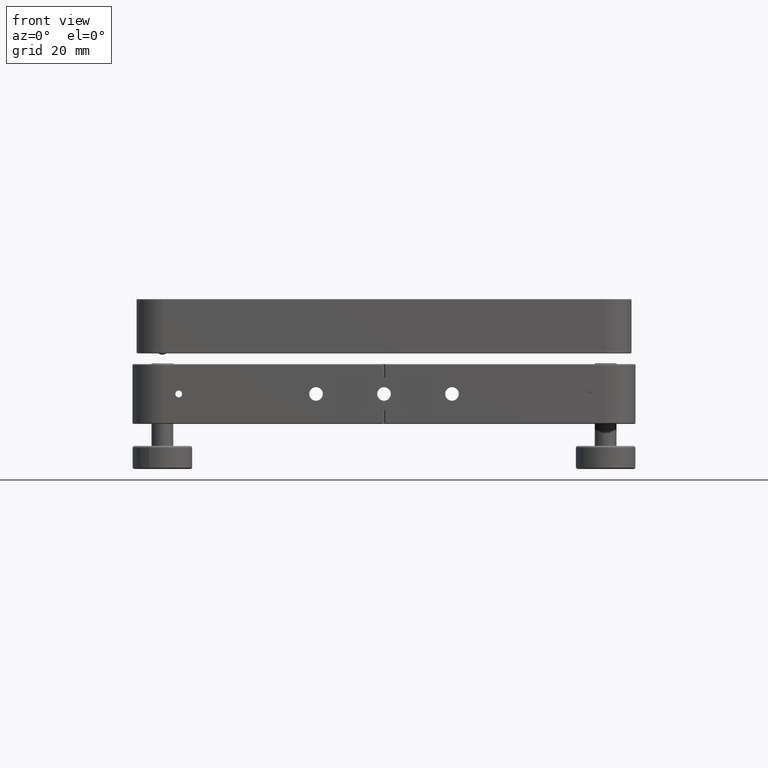
[diagram: clean part render]
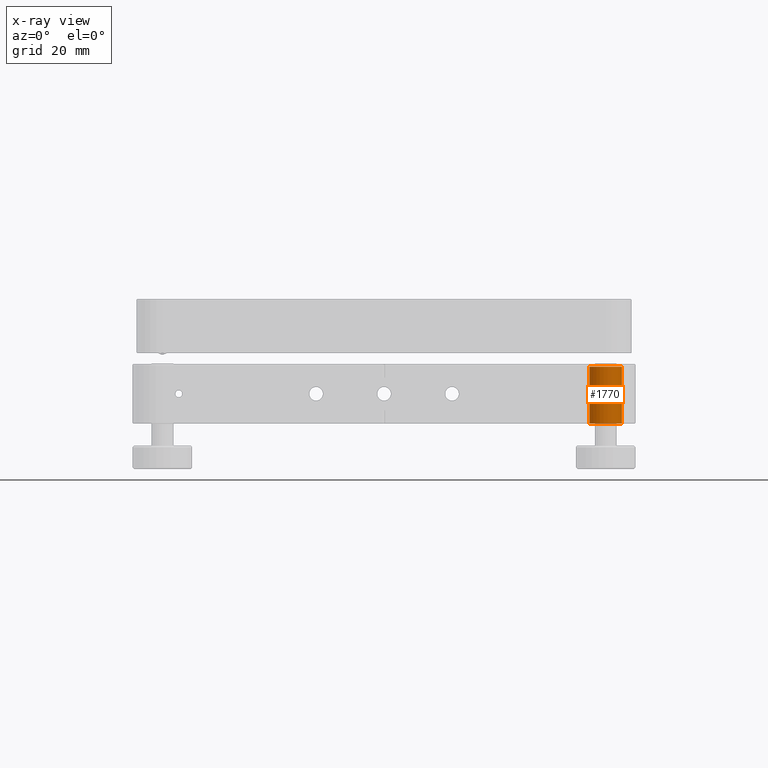
[diagram: x-ray — body ghosted, one internal face saturated and labeled with its STEP entity id]
A machine part, front view, then the same camera in x-ray: the body is ghosted and one INTERNAL B-rep face — a face not visible from any outside direction — is saturated and labeled: STEP entity #1770.
In plain terms, the highlighted cylindrical surface (edge-blend (fillet) strip) has radius 6 mm, axis along (-0, -0, 1).
Its self-contained STEP definition (entity closure, byte-faithful):
#106 = VERTEX_POINT ( 'NONE', #4818 ) ;
#218 = CARTESIAN_POINT ( 'NONE',  ( 76.47780713787686580, -84.78375859891420419, 0.7819749117090980528 ) ) ;
#284 = VERTEX_POINT ( 'NONE', #4466 ) ;
#384 = DIRECTION ( 'NONE',  ( -0.000000000000000000, -0.000000000000000000, 1.000000000000000000 ) ) ;
#454 = CARTESIAN_POINT ( 'NONE',  ( 87.50000000000001421, -81.49999999999998579, -11.00000000000000000 ) ) ;
#827 = CARTESIAN_POINT ( 'NONE',  ( 75.50000000000000000, -81.49999999999998579, 1.249999999999994005 ) ) ;
#1086 = DIRECTION ( 'NONE',  ( -0.000000000000000000, -0.000000000000000000, 1.000000000000000000 ) ) ;
#1185 = FACE_OUTER_BOUND ( 'NONE', #8980, .T. ) ;
#1280 = CYLINDRICAL_SURFACE ( 'NONE', #4076, 6.000000000000005329 ) ;
#1411 = CARTESIAN_POINT ( 'NONE',  ( 76.43834132448142782, -84.72282159784718658, -0.8282246022389997409 ) ) ;
#1770 = ADVANCED_FACE ( 'NONE', ( #1185 ), #1280, .F. ) ;
#1902 = CARTESIAN_POINT ( 'NONE',  ( 76.43484836030268070, -84.71731288065154786, 0.8321056435616549507 ) ) ;
#2000 = EDGE_CURVE ( 'NONE', #11392, #14306, #12048, .T. ) ;
#2088 = LINE ( 'NONE', #8219, #14669 ) ;
#2401 = CARTESIAN_POINT ( 'NONE',  ( 75.50000000000000000, -81.49999999999998579, -11.00000000000000000 ) ) ;
#2511 = CARTESIAN_POINT ( 'NONE',  ( 76.75029838675787630, -85.16610622245730156, -0.08989913163700379017 ) ) ;
#2786 = DIRECTION ( 'NONE',  ( -0.000000000000000000, -0.000000000000000000, 1.000000000000000000 ) ) ;
#2793 = CARTESIAN_POINT ( 'NONE',  ( 75.68133658306690847, -82.97580350192775711, -1.237886824584640832 ) ) ;
#2880 = ORIENTED_EDGE ( 'NONE', *, *, #2000, .T. ) ;
#2889 = CARTESIAN_POINT ( 'NONE',  ( 76.67094071428417124, -85.06139281333041424, -0.4450038959629268320 ) ) ;
#2959 = ORIENTED_EDGE ( 'NONE', *, *, #17983, .T. ) ;
#3222 = DIRECTION ( 'NONE',  ( -0.000000000000000000, -0.000000000000000000, -1.000000000000000000 ) ) ;
#3473 = CARTESIAN_POINT ( 'NONE',  ( 75.50000000000000000, -81.50000000000000000, -1.249999999999994671 ) ) ;
#3991 = AXIS2_PLACEMENT_3D ( 'NONE', #13644, #12160, #9095 ) ;
#4076 = AXIS2_PLACEMENT_3D ( 'NONE', #14915, #1086, #11560 ) ;
#4270 = CARTESIAN_POINT ( 'NONE',  ( 75.50000000000000000, -81.50000000000000000, -1.249999999999994671 ) ) ;
#4338 = VECTOR ( 'NONE', #2786, 1000.000000000000000 ) ;
#4466 = CARTESIAN_POINT ( 'NONE',  ( 87.50000000000001421, -81.49999999999998579, 9.999999999999998224 ) ) ;
#4473 = CARTESIAN_POINT ( 'NONE',  ( 76.05501766432814748, -84.02680410238235709, 1.123955487168872169 ) ) ;
#4565 = CARTESIAN_POINT ( 'NONE',  ( 76.59997800398983259, -84.96311795141349421, 0.5992766933433345544 ) ) ;
#4596 = DIRECTION ( 'NONE',  ( 1.000000000000000000, 0.000000000000000000, 0.000000000000000000 ) ) ;
#4617 = VECTOR ( 'NONE', #384, 1000.000000000000000 ) ;
#4774 = CARTESIAN_POINT ( 'NONE',  ( 76.56044203493343048, -84.90679597129781087, 0.6656232057040230021 ) ) ;
#4818 = CARTESIAN_POINT ( 'NONE',  ( 75.50000000000000000, -81.49999999999998579, -11.00000000000000000 ) ) ;
#4870 = CARTESIAN_POINT ( 'NONE',  ( 76.66822335308468439, -85.05771498874064207, 0.4520380091912103993 ) ) ;
#5258 = EDGE_CURVE ( 'NONE', #14306, #17967, #10301, .T. ) ;
#5670 = CARTESIAN_POINT ( 'NONE',  ( 76.05702805116135323, -84.03122345339707522, -1.123044878255709200 ) ) ;
#5861 = CARTESIAN_POINT ( 'NONE',  ( 76.30679783533970806, -84.50973780801233204, -0.9629844156710601899 ) ) ;
#5961 = CARTESIAN_POINT ( 'NONE',  ( 76.69768547221787003, -85.09706915045006781, 0.3690722888009855263 ) ) ;
#6061 = CARTESIAN_POINT ( 'NONE',  ( 75.67345832695825436, -82.97999721175459342, 1.239852364324820932 ) ) ;
#6912 = ORIENTED_EDGE ( 'NONE', *, *, #5258, .T. ) ;
#7188 = CIRCLE ( 'NONE', #18859, 6.000000000000005329 ) ;
#7348 = CARTESIAN_POINT ( 'NONE',  ( 75.84481341808493937, -83.51338237752980831, -1.203661452424305001 ) ) ;
#7929 = CARTESIAN_POINT ( 'NONE',  ( 75.50000000000000000, -81.49999999999998579, 1.249999999999994005 ) ) ;
#8173 = EDGE_CURVE ( 'NONE', #284, #17967, #7188, .T. ) ;
#8219 = CARTESIAN_POINT ( 'NONE',  ( 87.50000000000001421, -81.49999999999998579, -11.00000000000000000 ) ) ;
#8980 = EDGE_LOOP ( 'NONE', ( #19206, #2959, #2880, #6912, #13360, #9108 ) ) ;
#9095 = DIRECTION ( 'NONE',  ( 1.000000000000000000, 0.000000000000000000, 0.000000000000000000 ) ) ;
#9108 = ORIENTED_EDGE ( 'NONE', *, *, #15462, .F. ) ;
#9222 = CARTESIAN_POINT ( 'NONE',  ( 75.77607548237953949, -83.33716646185143873, 1.227541699854906465 ) ) ;
#9248 = CARTESIAN_POINT ( 'NONE',  ( 81.50000000000000000, -81.49999999999998579, 9.999999999999998224 ) ) ;
#9868 = CARTESIAN_POINT ( 'NONE',  ( 75.50000000000000000, -81.49999999999998579, -11.00000000000000000 ) ) ;
#10026 = CARTESIAN_POINT ( 'NONE',  ( 76.69995544426932099, -85.10008940092782836, -0.3616466798126026228 ) ) ;
#10301 = LINE ( 'NONE', #2401, #4338 ) ;
#10308 = CARTESIAN_POINT ( 'NONE',  ( 75.53516917574225431, -82.24745843703314563, -1.251413607979768861 ) ) ;
#11392 = VERTEX_POINT ( 'NONE', #3473 ) ;
#11486 = EDGE_CURVE ( 'NONE', #106, #17386, #18801, .T. ) ;
#11498 = CARTESIAN_POINT ( 'NONE',  ( 75.63843892088685550, -82.79482699041332694, -1.242790363445703372 ) ) ;
#11560 = DIRECTION ( 'NONE',  ( 1.000000000000000000, 0.000000000000000000, 0.000000000000000000 ) ) ;
#12048 = B_SPLINE_CURVE_WITH_KNOTS ( 'NONE', 3,
 ( #4270, #14663, #10308, #11498, #2793, #14951, #7348, #19193, #5670, #14851, #5861, #1411, #17515, #17897, #16424, #2889, #10026, #16048, #2511, #12295, #13865, #5961, #4870, #4565, #4774, #218, #1902, #15439, #12090, #4473, #12391, #9222, #6061, #12187, #16728, #7929 ),
 .UNSPECIFIED., .F., .F.,
 ( 4, 2, 2, 2, 2, 2, 2, 2, 2, 2, 2, 2, 2, 2, 2, 2, 2, 4 ),
 ( 1.387948177032400748E-17, 0.001113954897904607120, 0.001670932346856887152, 0.002227909795809167402, 0.002784887244761447434, 0.003341864693713727467, 0.003620353418189857942, 0.003898842142665988417, 0.004177330867142118459, 0.004455819591618248934, 0.004734308316094379410, 0.005012797040570510752, 0.005291285765046641228, 0.005569774489522771703, 0.006126751938475013572, 0.006683729387427255440, 0.007797684285331754790, 0.008911639183236253273 ),
 .UNSPECIFIED. ) ;
#12090 = CARTESIAN_POINT ( 'NONE',  ( 76.21673344335481204, -84.34950278101798915, 1.028403479199701653 ) ) ;
#12160 = DIRECTION ( 'NONE',  ( 0.000000000000000000, 0.000000000000000000, 1.000000000000000000 ) ) ;
#12187 = CARTESIAN_POINT ( 'NONE',  ( 75.53506567787785286, -82.24735409764262783, 1.251436005054976652 ) ) ;
#12295 = CARTESIAN_POINT ( 'NONE',  ( 76.74968844366230769, -85.16531586181871205, 0.09801379278043348409 ) ) ;
#12391 = CARTESIAN_POINT ( 'NONE',  ( 75.97924734411240877, -83.85709847810868212, 1.156704827246186618 ) ) ;
#13360 = ORIENTED_EDGE ( 'NONE', *, *, #8173, .F. ) ;
#13644 = CARTESIAN_POINT ( 'NONE',  ( 81.50000000000000000, -81.49999999999998579, -11.00000000000000000 ) ) ;
#13865 = CARTESIAN_POINT ( 'NONE',  ( 76.73831486880143871, -85.15068295092707729, 0.1929796114304664634 ) ) ;
#14306 = VERTEX_POINT ( 'NONE', #827 ) ;
#14663 = CARTESIAN_POINT ( 'NONE',  ( 75.50000000000000000, -81.87668656156033364, -1.249999999999994449 ) ) ;
#14669 = VECTOR ( 'NONE', #16916, 1000.000000000000000 ) ;
#14851 = CARTESIAN_POINT ( 'NONE',  ( 76.22022422600583980, -84.35604684541686993, -1.026054147027022800 ) ) ;
#14915 = CARTESIAN_POINT ( 'NONE',  ( 81.50000000000000000, -81.49999999999998579, -11.00000000000000000 ) ) ;
#14951 = CARTESIAN_POINT ( 'NONE',  ( 75.78432107509470939, -83.33462649148302148, -1.218362948014922509 ) ) ;
#15439 = CARTESIAN_POINT ( 'NONE',  ( 76.30450093346955498, -84.50570169348546301, 0.9646985452863772181 ) ) ;
#15462 = EDGE_CURVE ( 'NONE', #17386, #284, #2088, .T. ) ;
#16048 = CARTESIAN_POINT ( 'NONE',  ( 76.73952023704346459, -85.15224641257319149, -0.1851242048214309655 ) ) ;
#16424 = CARTESIAN_POINT ( 'NONE',  ( 76.60331199631927745, -84.96782048993441094, -0.5931553443816581783 ) ) ;
#16728 = CARTESIAN_POINT ( 'NONE',  ( 75.49999999999998579, -81.87155860696968546, 1.249999999999993783 ) ) ;
#16916 = DIRECTION ( 'NONE',  ( -0.000000000000000000, -0.000000000000000000, 1.000000000000000000 ) ) ;
#16982 = LINE ( 'NONE', #9868, #4617 ) ;
#17386 = VERTEX_POINT ( 'NONE', #454 ) ;
#17515 = CARTESIAN_POINT ( 'NONE',  ( 76.48151232234707209, -84.78941037990459506, -0.7773441658092773432 ) ) ;
#17897 = CARTESIAN_POINT ( 'NONE',  ( 76.56388218675280655, -84.91177082347596183, -0.6601402000688527671 ) ) ;
#17967 = VERTEX_POINT ( 'NONE', #18550 ) ;
#17983 = EDGE_CURVE ( 'NONE', #106, #11392, #16982, .T. ) ;
#18550 = CARTESIAN_POINT ( 'NONE',  ( 75.50000000000000000, -81.49999999999998579, 9.999999999999998224 ) ) ;
#18801 = CIRCLE ( 'NONE', #3991, 6.000000000000005329 ) ;
#18859 = AXIS2_PLACEMENT_3D ( 'NONE', #9248, #3222, #4596 ) ;
#19193 = CARTESIAN_POINT ( 'NONE',  ( 75.98090494314179466, -83.86102385159136929, -1.156039627783314039 ) ) ;
#19206 = ORIENTED_EDGE ( 'NONE', *, *, #11486, .F. ) ;